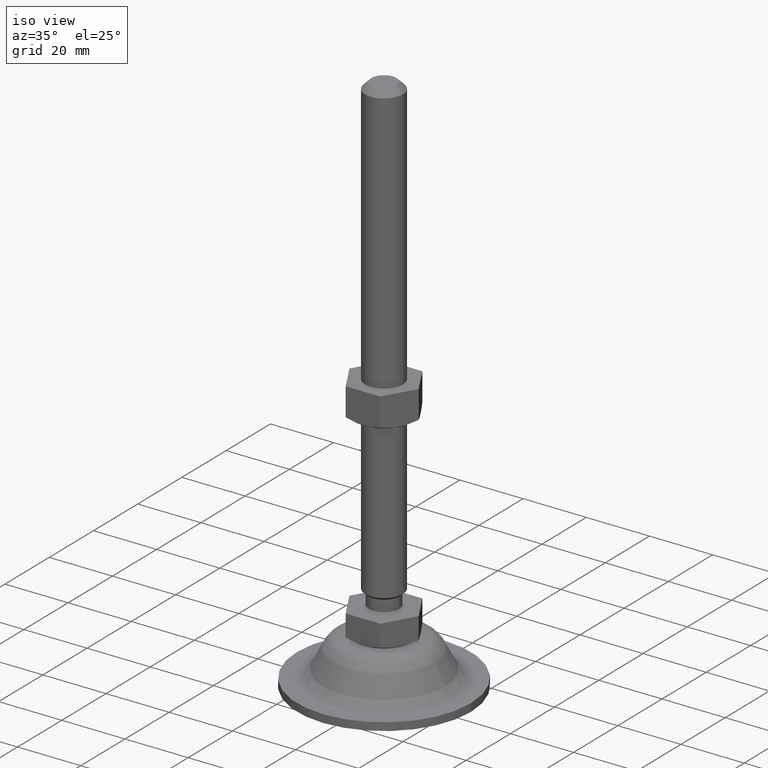
[diagram: clean part render]
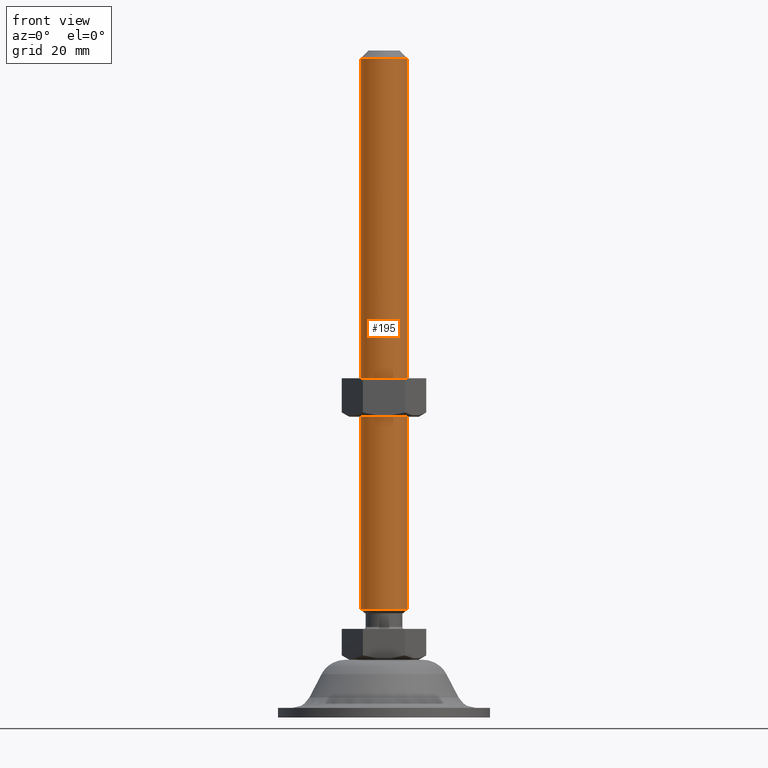
[diagram: tour spotlight — one face highlighted and labeled with its STEP entity id]
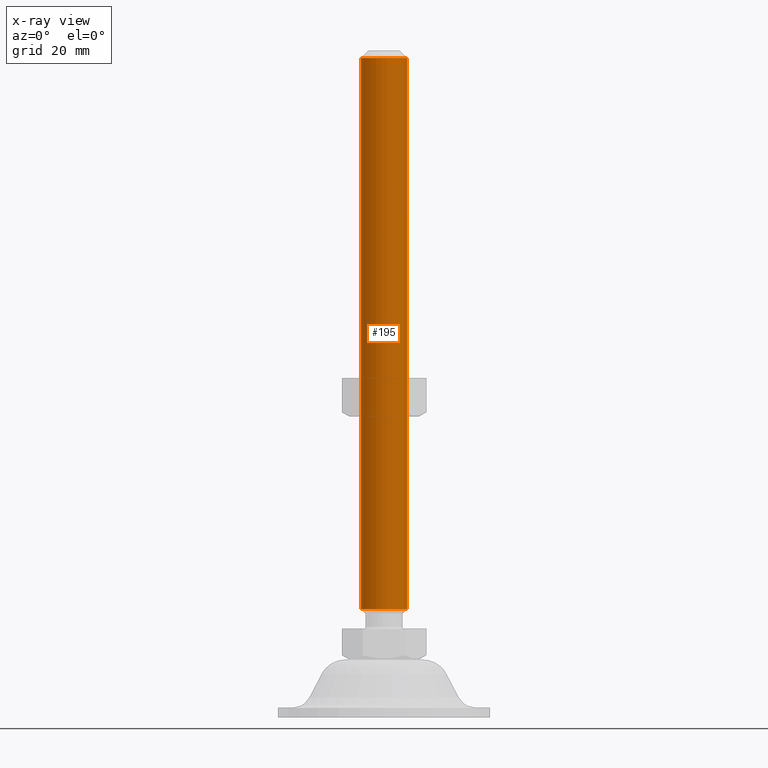
[diagram: x-ray of the same camera — body ghosted, this tour face saturated]
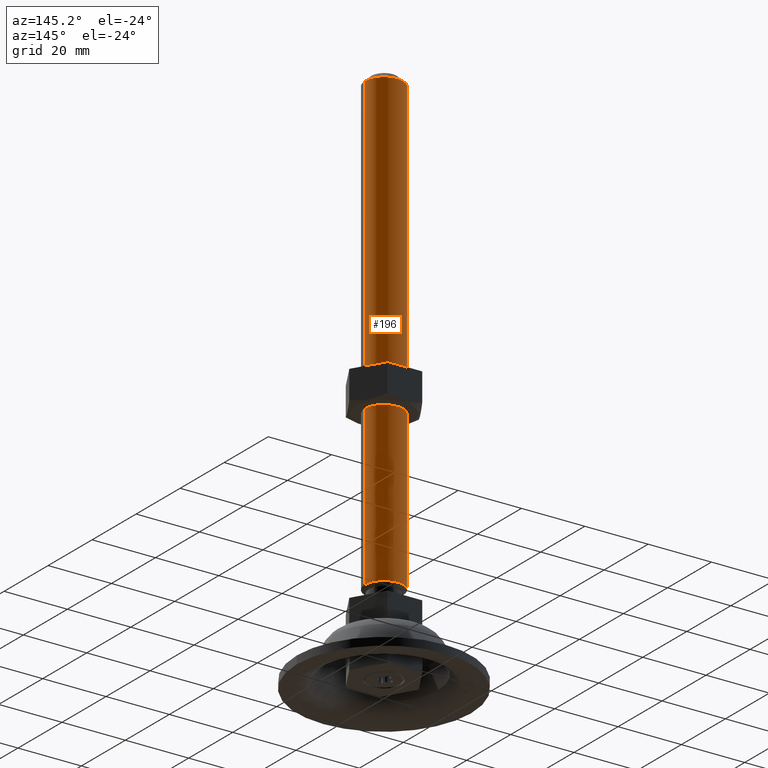
[diagram: tour spotlight — one face highlighted and labeled with its STEP entity id]
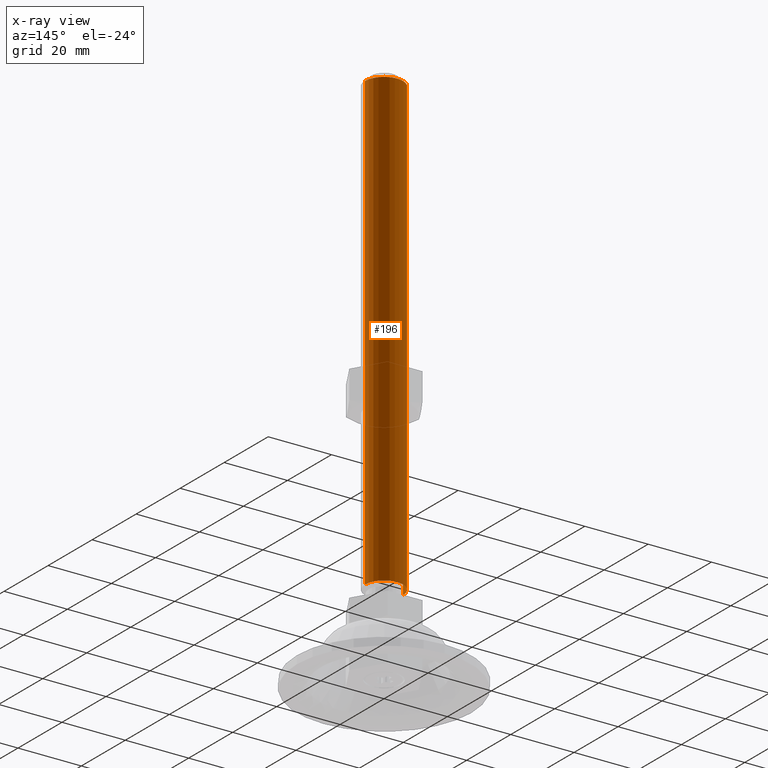
[diagram: x-ray of the same camera — body ghosted, this tour face saturated]
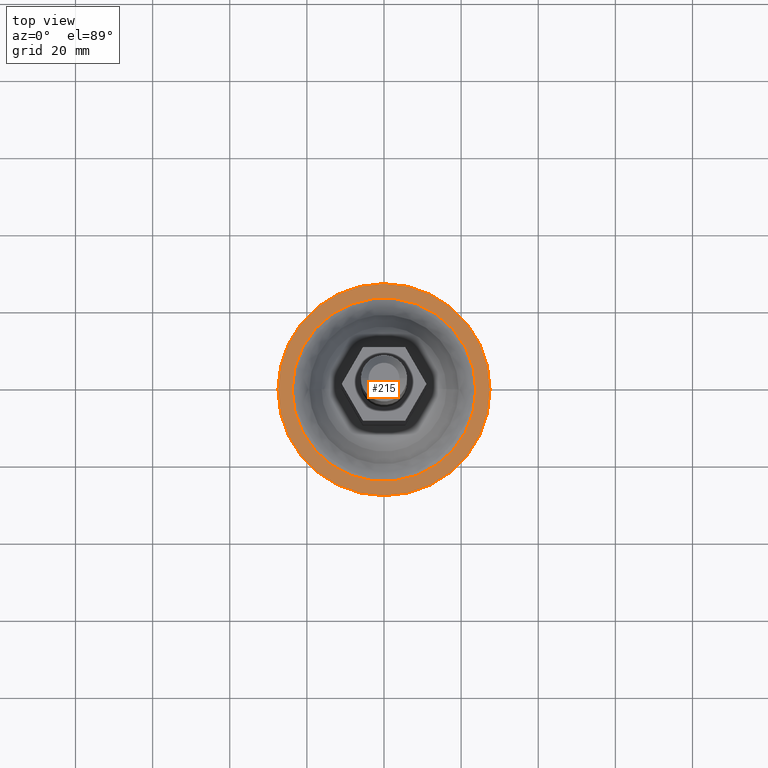
[diagram: tour spotlight — one face highlighted and labeled with its STEP entity id]
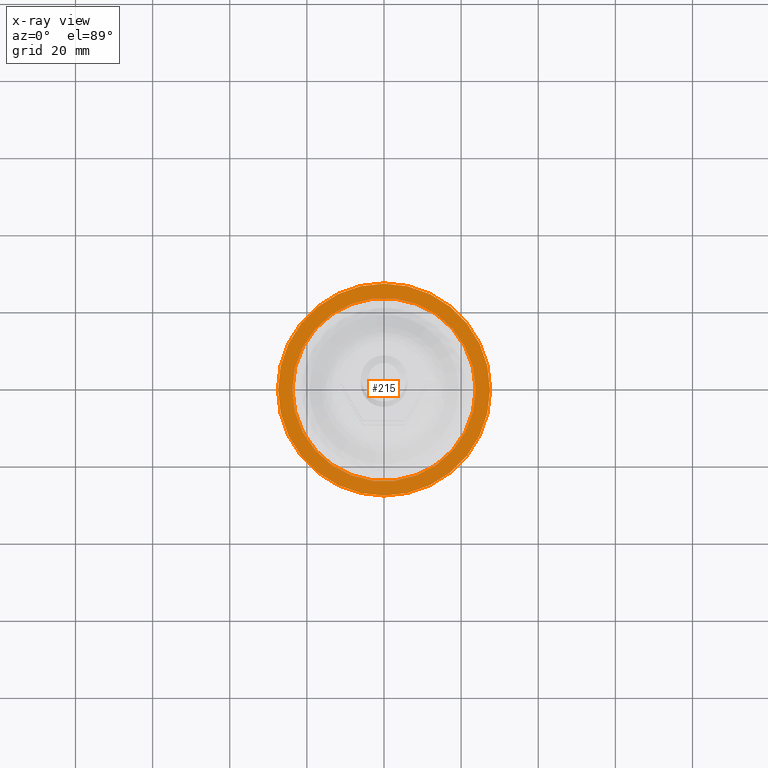
[diagram: x-ray of the same camera — body ghosted, this tour face saturated]
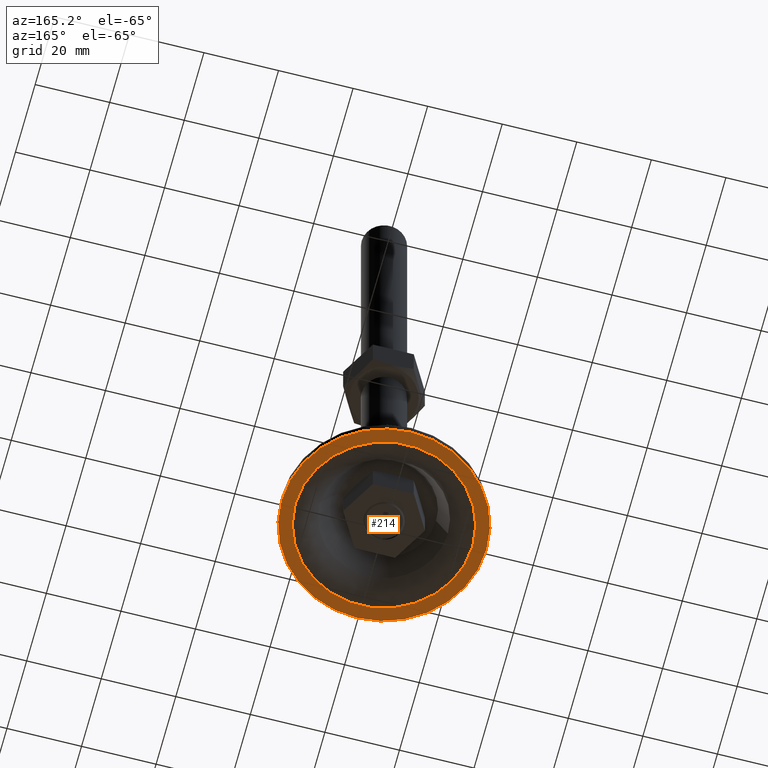
[diagram: tour spotlight — one face highlighted and labeled with its STEP entity id]
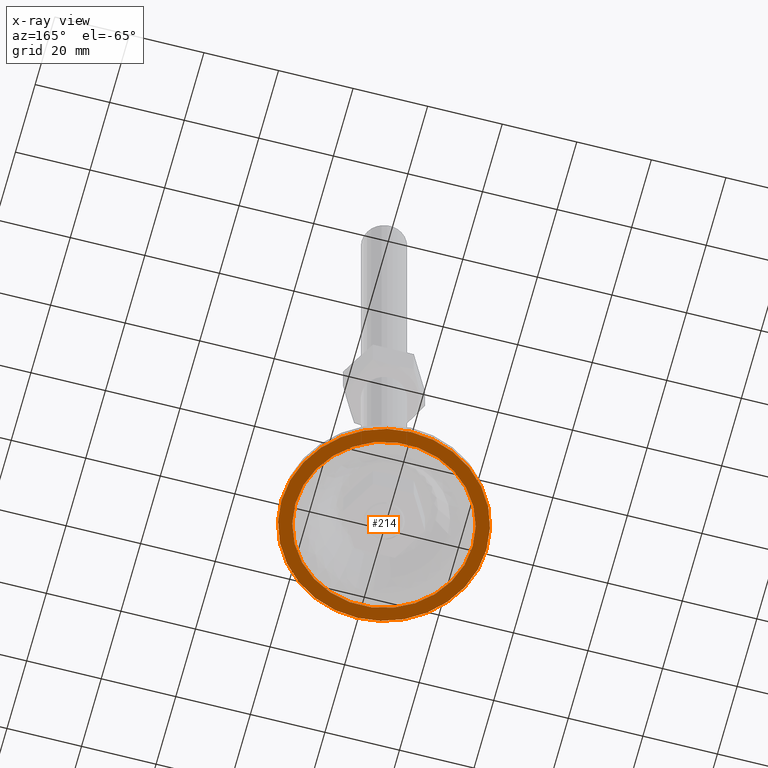
[diagram: x-ray of the same camera — body ghosted, this tour face saturated]
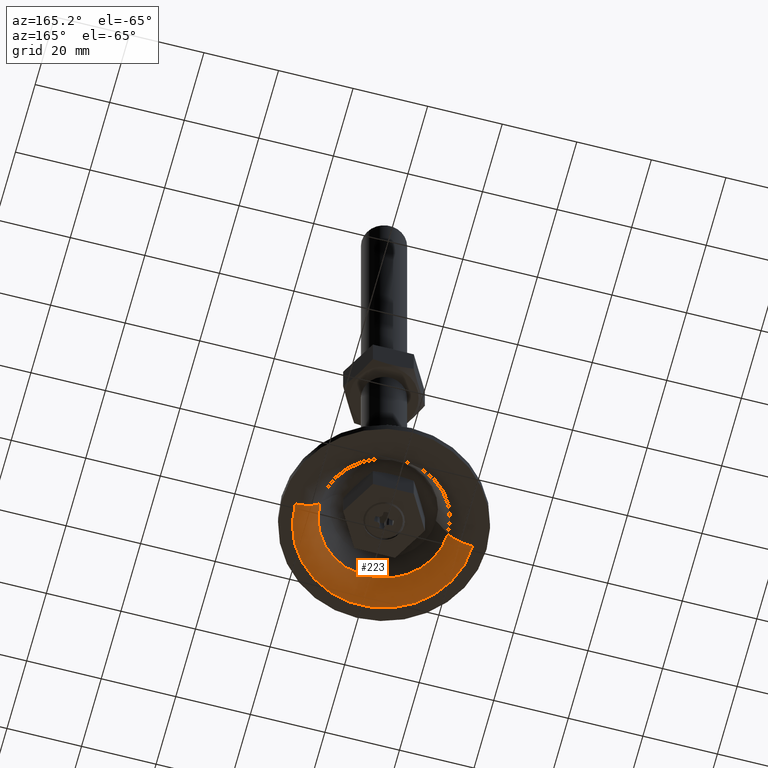
[diagram: tour spotlight — one face highlighted and labeled with its STEP entity id]
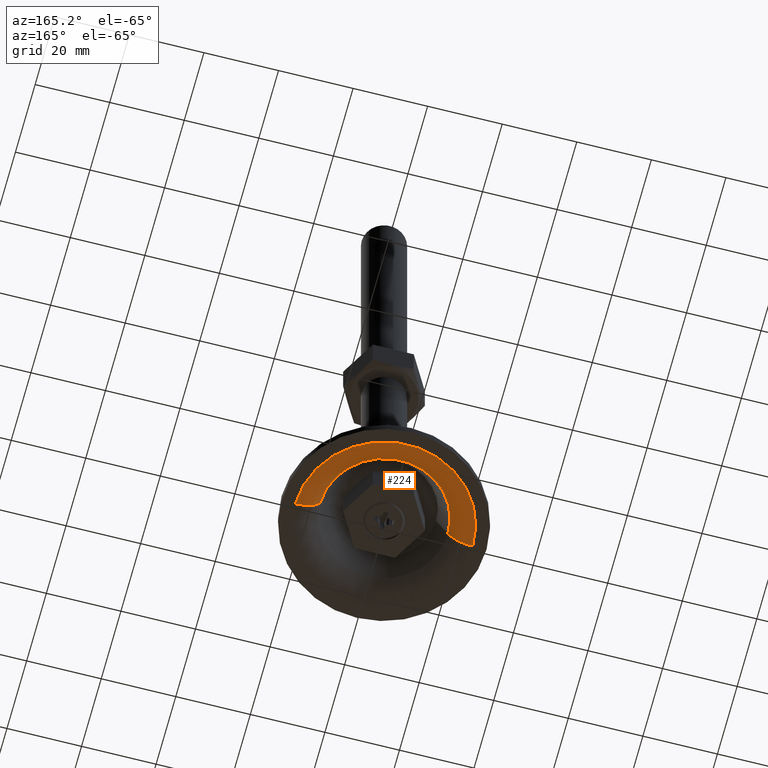
[diagram: tour spotlight — one face highlighted and labeled with its STEP entity id]
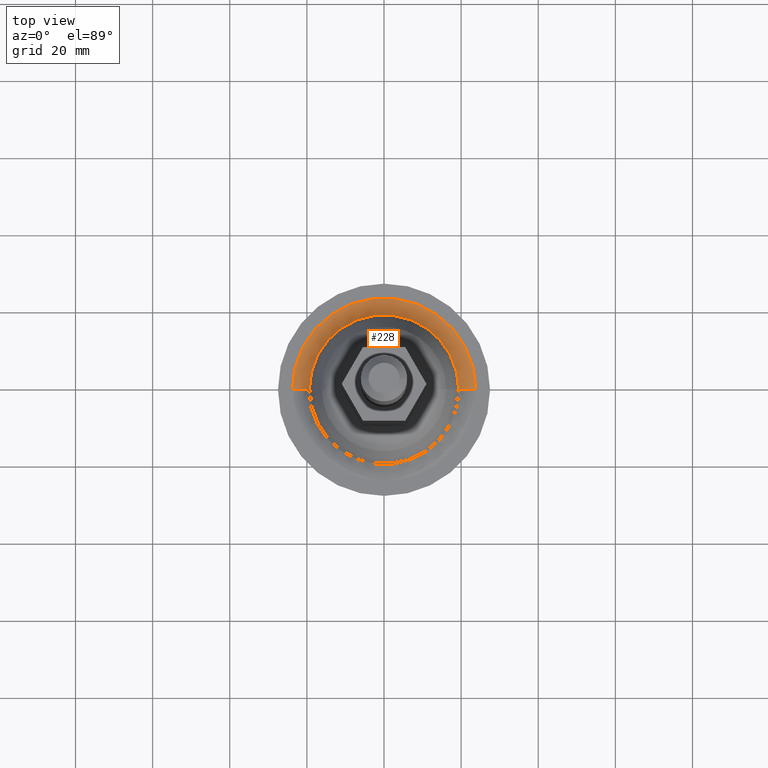
[diagram: tour spotlight — one face highlighted and labeled with its STEP entity id]
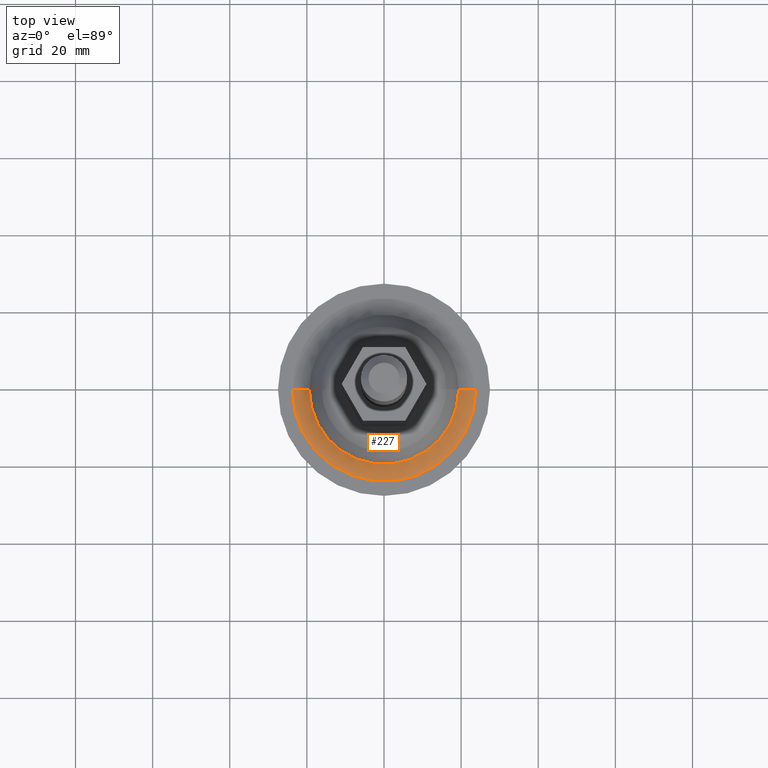
[diagram: tour spotlight — one face highlighted and labeled with its STEP entity id]
A machine part: a face-by-face anatomy tour. The part has 96 B-rep faces; the first image is the clean iso view, then the 8 largest visible faces are spotlighted one at a time (largest first), each with its STEP entity span.

Face 1 — front view, entity #195. An x-ray twin of the same camera follows (body ghosted, this face saturated) — the face is partly hidden behind the body. In plain terms, the highlighted cylindrical surface (edge-blend (fillet) strip) has radius 6 mm, axis along (0, 0, 1).
Definition (entity closure, byte-faithful):
#195=ADVANCED_FACE('',(#712),#711,.T.);
#711=CYLINDRICAL_SURFACE('',#1468,6.00000000009E+00);
#712=FACE_OUTER_BOUND('',#1469,.T.);
#1465=CARTESIAN_POINT('',(-2.70574673777E-11,0.00000000000E+00,0.00000000000E+00));
#1466=DIRECTION('',(0.00000000000E+00,-0.00000000000E+00,1.00000000000E+00));
#1467=DIRECTION('',(-1.00000000000E+00,1.22464679915E-16,0.00000000000E+00));
#1468=AXIS2_PLACEMENT_3D('',#1465,#1466,#1467);
#1469=EDGE_LOOP('',(#2297,#2298,#2299,#2300));
#2297=ORIENTED_EDGE('',*,*,#2637,.T.);
#2298=ORIENTED_EDGE('',*,*,#2638,.F.);
#2299=ORIENTED_EDGE('',*,*,#2639,.T.);
#2300=ORIENTED_EDGE('',*,*,#2640,.T.);
#2637=EDGE_CURVE('',#3587,#3588,#3589,.T.);
#2638=EDGE_CURVE('',#3595,#3588,#3596,.T.);
#2639=EDGE_CURVE('',#3595,#3602,#3603,.T.);
#2640=EDGE_CURVE('',#3602,#3587,#3609,.T.);
#3587=VERTEX_POINT('',#4797);
#3588=VERTEX_POINT('',#4798);
#3589=CIRCLE('',#4802,6.00000000009E+00);
#3595=VERTEX_POINT('',#4803);
#3596=(BOUNDED_CURVE() B_SPLINE_CURVE(1,(#4804,#4805),.UNSPECIFIED.,.F.,.F.) B_SPLINE_CURVE_WITH_KNOTS((2,2),(6.13696476442E-02,9.38630352235E-01),.UNSPECIFIED.) CURVE() GEOMETRIC_REPRESENTATION_ITEM() RATIONAL_B_SPLINE_CURVE((1.00000000000E+00,1.00000000000E+00)) REPRESENTATION_ITEM('') );
#3602=VERTEX_POINT('',#4806);
#3603=CIRCLE('',#4810,6.00000000009E+00);
#3609=(BOUNDED_CURVE() B_SPLINE_CURVE(1,(#4811,#4812),.UNSPECIFIED.,.F.,.F.) B_SPLINE_CURVE_WITH_KNOTS((2,2),(6.13696475984E-02,9.38630352402E-01),.UNSPECIFIED.) CURVE() GEOMETRIC_REPRESENTATION_ITEM() RATIONAL_B_SPLINE_CURVE((7.50000000000E-01,7.50000000000E-01)) REPRESENTATION_ITEM('') );
#4797=CARTESIAN_POINT('',(6.00000000006E+00,0.00000000000E+00,1.48000000366E+02));
#4798=CARTESIAN_POINT('',(-6.00000000012E+00,1.18423789293E-15,1.48000000366E+02));
#4799=CARTESIAN_POINT('',(-2.70574673777E-11,0.00000000000E+00,1.48000000366E+02));
#4800=DIRECTION('',(0.00000000000E+00,0.00000000000E+00,-1.00000000000E+00));
#4801=DIRECTION('',(1.00000000000E+00,-1.22460635382E-16,0.00000000000E+00));
#4802=AXIS2_PLACEMENT_3D('',#4799,#4800,#4801);
#4803=CARTESIAN_POINT('',(-6.00000000012E+00,-2.96059473233E-16,5.05299983155E+00));
#4804=CARTESIAN_POINT('',(-6.00000000012E+00,7.34788079499E-16,5.05299983901E+00));
#4805=CARTESIAN_POINT('',(-6.00000000012E+00,7.34788079499E-16,1.48000000338E+02));
#4806=CARTESIAN_POINT('',(6.00000000006E+00,0.00000000000E+00,5.05299983155E+00));
#4807=CARTESIAN_POINT('',(-2.70574673777E-11,0.00000000000E+00,5.05299983155E+00));
#4808=DIRECTION('',(0.00000000000E+00,0.00000000000E+00,1.00000000000E+00));
#4809=DIRECTION('',(1.00000000000E+00,-1.22460635382E-16,0.00000000000E+00));
#4810=AXIS2_PLACEMENT_3D('',#4807,#4808,#4809);
#4811=CARTESIAN_POINT('',(6.00000000006E+00,0.00000000000E+00,5.05299983155E+00));
#4812=CARTESIAN_POINT('',(6.00000000006E+00,0.00000000000E+00,1.48000000366E+02));

Face 2 — auxiliary view, entity #196. An x-ray twin of the same camera follows (body ghosted, this face saturated) — the face is partly hidden behind the body. In plain terms, the highlighted cylindrical surface (edge-blend (fillet) strip) has radius 6 mm, axis along (0, 0, 1).
Definition (entity closure, byte-faithful):
#196=ADVANCED_FACE('',(#722),#721,.T.);
#721=CYLINDRICAL_SURFACE('',#1473,6.00000000009E+00);
#722=FACE_OUTER_BOUND('',#1474,.T.);
#1470=CARTESIAN_POINT('',(-2.70574673777E-11,0.00000000000E+00,0.00000000000E+00));
#1471=DIRECTION('',(0.00000000000E+00,-0.00000000000E+00,1.00000000000E+00));
#1472=DIRECTION('',(-1.00000000000E+00,1.22464679915E-16,0.00000000000E+00));
#1473=AXIS2_PLACEMENT_3D('',#1470,#1471,#1472);
#1474=EDGE_LOOP('',(#2301,#2302,#2303,#2304));
#2301=ORIENTED_EDGE('',*,*,#2641,.T.);
#2302=ORIENTED_EDGE('',*,*,#2638,.T.);
#2303=ORIENTED_EDGE('',*,*,#2642,.T.);
#2304=ORIENTED_EDGE('',*,*,#2640,.F.);
#2638=EDGE_CURVE('',#3595,#3588,#3596,.T.);
#2640=EDGE_CURVE('',#3602,#3587,#3609,.T.);
#2641=EDGE_CURVE('',#3602,#3595,#3615,.T.);
#2642=EDGE_CURVE('',#3588,#3587,#3621,.T.);
#3587=VERTEX_POINT('',#4797);
#3588=VERTEX_POINT('',#4798);
#3595=VERTEX_POINT('',#4803);
#3596=(BOUNDED_CURVE() B_SPLINE_CURVE(1,(#4804,#4805),.UNSPECIFIED.,.F.,.F.) B_SPLINE_CURVE_WITH_KNOTS((2,2),(6.13696476442E-02,9.38630352235E-01),.UNSPECIFIED.) CURVE() GEOMETRIC_REPRESENTATION_ITEM() RATIONAL_B_SPLINE_CURVE((1.00000000000E+00,1.00000000000E+00)) REPRESENTATION_ITEM('') );
#3602=VERTEX_POINT('',#4806);
#3609=(BOUNDED_CURVE() B_SPLINE_CURVE(1,(#4811,#4812),.UNSPECIFIED.,.F.,.F.) B_SPLINE_CURVE_WITH_KNOTS((2,2),(6.13696475984E-02,9.38630352402E-01),.UNSPECIFIED.) CURVE() GEOMETRIC_REPRESENTATION_ITEM() RATIONAL_B_SPLINE_CURVE((7.50000000000E-01,7.50000000000E-01)) REPRESENTATION_ITEM('') );
#3615=CIRCLE('',#4816,6.00000000009E+00);
#3621=CIRCLE('',#4820,6.00000000009E+00);
#4797=CARTESIAN_POINT('',(6.00000000006E+00,0.00000000000E+00,1.48000000366E+02));
#4798=CARTESIAN_POINT('',(-6.00000000012E+00,1.18423789293E-15,1.48000000366E+02));
#4803=CARTESIAN_POINT('',(-6.00000000012E+00,-2.96059473233E-16,5.05299983155E+00));
#4804=CARTESIAN_POINT('',(-6.00000000012E+00,7.34788079499E-16,5.05299983901E+00));
#4805=CARTESIAN_POINT('',(-6.00000000012E+00,7.34788079499E-16,1.48000000338E+02));
#4806=CARTESIAN_POINT('',(6.00000000006E+00,0.00000000000E+00,5.05299983155E+00));
#4811=CARTESIAN_POINT('',(6.00000000006E+00,0.00000000000E+00,5.05299983155E+00));
#4812=CARTESIAN_POINT('',(6.00000000006E+00,0.00000000000E+00,1.48000000366E+02));
#4813=CARTESIAN_POINT('',(-2.70574673777E-11,0.00000000000E+00,5.05299983155E+00));
#4814=DIRECTION('',(0.00000000000E+00,0.00000000000E+00,1.00000000000E+00));
#4815=DIRECTION('',(1.00000000000E+00,-1.22460635382E-16,0.00000000000E+00));
#4816=AXIS2_PLACEMENT_3D('',#4813,#4814,#4815);
#4817=CARTESIAN_POINT('',(-2.70574673777E-11,0.00000000000E+00,1.48000000366E+02));
#4818=DIRECTION('',(0.00000000000E+00,0.00000000000E+00,-1.00000000000E+00));
#4819=DIRECTION('',(1.00000000000E+00,-1.22460635382E-16,0.00000000000E+00));
#4820=AXIS2_PLACEMENT_3D('',#4817,#4818,#4819);

Face 3 — top view, entity #215. An x-ray twin of the same camera follows (body ghosted, this face saturated) — the face is partly hidden behind the body. In plain terms, the highlighted planar face has unit normal (0, 0, 1).
Definition (entity closure, byte-faithful):
#215=ADVANCED_FACE('',(#914,#915),#913,.T.);
#913=PLANE('',#1714);
#914=FACE_OUTER_BOUND('',#1715,.T.);
#915=FACE_BOUND('',#1716,.T.);
#1711=CARTESIAN_POINT('',(-3.57500000001E+01,-5.71576766498E+01,-2.05000003431E+01));
#1712=DIRECTION('',(0.00000000000E+00,0.00000000000E+00,1.00000000000E+00));
#1713=DIRECTION('',(1.00000000000E+00,0.00000000000E+00,-0.00000000000E+00));
#1714=AXIS2_PLACEMENT_3D('',#1711,#1712,#1713);
#1715=EDGE_LOOP('',(#2381,#2382));
#1716=EDGE_LOOP('',(#2383,#2384));
#2381=ORIENTED_EDGE('',*,*,#2669,.F.);
#2382=ORIENTED_EDGE('',*,*,#2670,.F.);
#2383=ORIENTED_EDGE('',*,*,#2671,.T.);
#2384=ORIENTED_EDGE('',*,*,#2672,.T.);
#2669=EDGE_CURVE('',#3793,#3794,#3795,.T.);
#2670=EDGE_CURVE('',#3794,#3793,#3801,.T.);
#2671=EDGE_CURVE('',#3807,#3808,#3809,.T.);
#2672=EDGE_CURVE('',#3808,#3807,#3815,.T.);
#3793=VERTEX_POINT('',#4907);
#3794=VERTEX_POINT('',#4908);
#3795=CIRCLE('',#4912,2.75000000000E+01);
#3801=CIRCLE('',#4916,2.75000000000E+01);
#3807=VERTEX_POINT('',#4917);
#3808=VERTEX_POINT('',#4918);
#3809=CIRCLE('',#4922,2.37911627802E+01);
#3815=CIRCLE('',#4926,2.37911627802E+01);
#4907=CARTESIAN_POINT('',(2.75000000000E+01,0.00000000000E+00,-2.05000003431E+01));
#4908=CARTESIAN_POINT('',(-2.75000000001E+01,0.00000000000E+00,-2.05000003431E+01));
#4909=CARTESIAN_POINT('',(-2.70574673777E-11,0.00000000000E+00,-2.05000003431E+01));
#4910=DIRECTION('',(-0.00000000000E+00,0.00000000000E+00,-1.00000000000E+00));
#4911=DIRECTION('',(-1.00000000000E+00,-1.22460635382E-16,0.00000000000E+00));
#4912=AXIS2_PLACEMENT_3D('',#4909,#4910,#4911);
#4913=CARTESIAN_POINT('',(-2.70574673777E-11,0.00000000000E+00,-2.05000003431E+01));
#4914=DIRECTION('',(-0.00000000000E+00,0.00000000000E+00,-1.00000000000E+00));
#4915=DIRECTION('',(-1.00000000000E+00,-1.22460635382E-16,0.00000000000E+00));
#4916=AXIS2_PLACEMENT_3D('',#4913,#4914,#4915);
#4917=CARTESIAN_POINT('',(-2.37911627802E+01,0.00000000000E+00,-2.05000003431E+01));
#4918=CARTESIAN_POINT('',(2.37911627802E+01,-1.18423789293E-15,-2.05000003431E+01));
#4919=CARTESIAN_POINT('',(-2.70574673777E-11,0.00000000000E+00,-2.05000003431E+01));
#4920=DIRECTION('',(-0.00000000000E+00,0.00000000000E+00,-1.00000000000E+00));
#4921=DIRECTION('',(-1.00000000000E+00,-1.22460635382E-16,0.00000000000E+00));
#4922=AXIS2_PLACEMENT_3D('',#4919,#4920,#4921);
#4923=CARTESIAN_POINT('',(-2.70574673777E-11,0.00000000000E+00,-2.05000003431E+01));
#4924=DIRECTION('',(-0.00000000000E+00,0.00000000000E+00,-1.00000000000E+00));
#4925=DIRECTION('',(-1.00000000000E+00,-1.22460635382E-16,0.00000000000E+00));
#4926=AXIS2_PLACEMENT_3D('',#4923,#4924,#4925);

Face 4 — auxiliary view, entity #214. An x-ray twin of the same camera follows (body ghosted, this face saturated) — the face is partly hidden behind the body. In plain terms, the highlighted planar face has unit normal (0, 0, -1).
Definition (entity closure, byte-faithful):
#214=ADVANCED_FACE('',(#903,#904),#902,.T.);
#902=PLANE('',#1708);
#903=FACE_OUTER_BOUND('',#1709,.T.);
#904=FACE_BOUND('',#1710,.T.);
#1705=CARTESIAN_POINT('',(6.32500000000E+01,-5.71576766498E+01,-2.30000002000E+01));
#1706=DIRECTION('',(-0.00000000000E+00,0.00000000000E+00,-1.00000000000E+00));
#1707=DIRECTION('',(-1.00000000000E+00,0.00000000000E+00,0.00000000000E+00));
#1708=AXIS2_PLACEMENT_3D('',#1705,#1706,#1707);
#1709=EDGE_LOOP('',(#2377,#2378));
#1710=EDGE_LOOP('',(#2379,#2380));
#2377=ORIENTED_EDGE('',*,*,#2665,.T.);
#2378=ORIENTED_EDGE('',*,*,#2666,.T.);
#2379=ORIENTED_EDGE('',*,*,#2667,.F.);
#2380=ORIENTED_EDGE('',*,*,#2668,.F.);
#2665=EDGE_CURVE('',#3765,#3766,#3767,.T.);
#2666=EDGE_CURVE('',#3766,#3765,#3773,.T.);
#2667=EDGE_CURVE('',#3779,#3780,#3781,.T.);
#2668=EDGE_CURVE('',#3780,#3779,#3787,.T.);
#3765=VERTEX_POINT('',#4887);
#3766=VERTEX_POINT('',#4888);
#3767=CIRCLE('',#4892,2.75000000000E+01);
#3773=CIRCLE('',#4896,2.75000000000E+01);
#3779=VERTEX_POINT('',#4897);
#3780=VERTEX_POINT('',#4898);
#3781=CIRCLE('',#4902,2.37911627802E+01);
#3787=CIRCLE('',#4906,2.37911627802E+01);
#4887=CARTESIAN_POINT('',(-2.75000000001E+01,0.00000000000E+00,-2.30000002000E+01));
#4888=CARTESIAN_POINT('',(2.75000000000E+01,1.18423789293E-15,-2.30000002000E+01));
#4889=CARTESIAN_POINT('',(-2.70574673777E-11,0.00000000000E+00,-2.30000002000E+01));
#4890=DIRECTION('',(-0.00000000000E+00,0.00000000000E+00,-1.00000000000E+00));
#4891=DIRECTION('',(-1.00000000000E+00,-1.22460635382E-16,0.00000000000E+00));
#4892=AXIS2_PLACEMENT_3D('',#4889,#4890,#4891);
#4893=CARTESIAN_POINT('',(-2.70574673777E-11,0.00000000000E+00,-2.30000002000E+01));
#4894=DIRECTION('',(-0.00000000000E+00,0.00000000000E+00,-1.00000000000E+00));
#4895=DIRECTION('',(-1.00000000000E+00,-1.22460635382E-16,0.00000000000E+00));
#4896=AXIS2_PLACEMENT_3D('',#4893,#4894,#4895);
#4897=CARTESIAN_POINT('',(2.37911627802E+01,-1.18423789293E-15,-2.30000002000E+01));
#4898=CARTESIAN_POINT('',(-2.37911627802E+01,0.00000000000E+00,-2.30000002000E+01));
#4899=CARTESIAN_POINT('',(-2.70574673777E-11,0.00000000000E+00,-2.30000002000E+01));
#4900=DIRECTION('',(-0.00000000000E+00,0.00000000000E+00,-1.00000000000E+00));
#4901=DIRECTION('',(-1.00000000000E+00,-1.22460635382E-16,0.00000000000E+00));
#4902=AXIS2_PLACEMENT_3D('',#4899,#4900,#4901);
#4903=CARTESIAN_POINT('',(-2.70574673777E-11,0.00000000000E+00,-2.30000002000E+01));
#4904=DIRECTION('',(-0.00000000000E+00,0.00000000000E+00,-1.00000000000E+00));
#4905=DIRECTION('',(-1.00000000000E+00,-1.22460635382E-16,0.00000000000E+00));
#4906=AXIS2_PLACEMENT_3D('',#4903,#4904,#4905);

Face 5 — auxiliary view, entity #223. In plain terms, the highlighted face is a freeform B-spline surface patch.
Definition (entity closure, byte-faithful):
#223=ADVANCED_FACE('',(#996),#995,.T.);
#995=( BOUNDED_SURFACE() B_SPLINE_SURFACE( 2,2,((#1807,#1808,#1809,#1810,#1811),(#1812,#1813,#1814,#1815,#1816),(#1817,#1818,#1819,#1820,#1821),(#1822,#1823,#1824,#1825,#1826),(#1827,#1828,#1829,#1830,#1831)), .UNSPECIFIED.,.F.,.F.,.F.) B_SPLINE_SURFACE_WITH_KNOTS((3,2,3),(3,2,3),(0.00000000000E+00,5.00000000000E-01,1.00000000000E+00),(0.00000000000E+00,5.00000000000E-01,1.00000000000E+00), .UNSPECIFIED. ) GEOMETRIC_REPRESENTATION_ITEM() RATIONAL_B_SPLINE_SURFACE(((1.00000000000E+00,8.54911870673E-01,1.00000000000E+00,8.54911870673E-01,1.00000000000E+00),(7.07106781187E-01,6.04513981070E-01,7.07106781187E-01,6.04513981070E-01,7.07106781187E-01),(1.00000000000E+00,8.54911870673E-01,1.00000000000E+00,8.54911870673E-01,1.00000000000E+00),(7.07106781187E-01,6.04513981070E-01,7.07106781187E-01,6.04513981070E-01,7.07106781187E-01),(1.00000000000E+00,8.54911870673E-01,1.00000000000E+00,8.54911870673E-01,1.00000000000E+00))) REPRESENTATION_ITEM('') SURFACE() );
#996=FACE_OUTER_BOUND('',#1832,.T.);
#1807=CARTESIAN_POINT('',(3.04437440290E+01,-3.72816023721E-15,-1.89631147993E+01));
#1808=CARTESIAN_POINT('',(2.83422745026E+01,-3.47081294376E-15,-2.30000002000E+01));
#1809=CARTESIAN_POINT('',(2.37911627802E+01,-2.91348091055E-15,-2.30000002000E+01));
#1810=CARTESIAN_POINT('',(1.92400510578E+01,-2.35614887733E-15,-2.30000002000E+01));
#1811=CARTESIAN_POINT('',(1.71385815314E+01,-2.09880158388E-15,-1.89631147993E+01));
#1812=CARTESIAN_POINT('',(3.04437440290E+01,-3.04437440291E+01,-1.89631147993E+01));
#1813=CARTESIAN_POINT('',(2.83422745026E+01,-2.83422745026E+01,-2.30000002000E+01));
#1814=CARTESIAN_POINT('',(2.37911627802E+01,-2.37911627802E+01,-2.30000002000E+01));
#1815=CARTESIAN_POINT('',(1.92400510578E+01,-1.92400510579E+01,-2.30000002000E+01));
#1816=CARTESIAN_POINT('',(1.71385815314E+01,-1.71385815314E+01,-1.89631147993E+01));
#1817=CARTESIAN_POINT('',(-2.70600807968E-11,-3.04437440291E+01,-1.89631147993E+01));
#1818=CARTESIAN_POINT('',(-2.70599521274E-11,-2.83422745026E+01,-2.30000002000E+01));
#1819=CARTESIAN_POINT('',(-2.70596734706E-11,-2.37911627802E+01,-2.30000002000E+01));
#1820=CARTESIAN_POINT('',(-2.70593948138E-11,-1.92400510579E+01,-2.30000002000E+01));
#1821=CARTESIAN_POINT('',(-2.70592661444E-11,-1.71385815314E+01,-1.89631147993E+01));
#1822=CARTESIAN_POINT('',(-3.04437440291E+01,-3.04437440291E+01,-1.89631147993E+01));
#1823=CARTESIAN_POINT('',(-2.83422745026E+01,-2.83422745026E+01,-2.30000002000E+01));
#1824=CARTESIAN_POINT('',(-2.37911627802E+01,-2.37911627802E+01,-2.30000002000E+01));
#1825=CARTESIAN_POINT('',(-1.92400510579E+01,-1.92400510579E+01,-2.30000002000E+01));
#1826=CARTESIAN_POINT('',(-1.71385815314E+01,-1.71385815314E+01,-1.89631147993E+01));
#1827=CARTESIAN_POINT('',(-3.04437440291E+01,-1.23130712075E-19,-1.89631147993E+01));
#1828=CARTESIAN_POINT('',(-2.83422745026E+01,-1.14631250282E-19,-2.30000002000E+01));
#1829=CARTESIAN_POINT('',(-2.37911627802E+01,-9.62241310204E-20,-2.30000002000E+01));
#1830=CARTESIAN_POINT('',(-1.92400510579E+01,-7.78170117597E-20,-2.30000002000E+01));
#1831=CARTESIAN_POINT('',(-1.71385815314E+01,-6.93175499666E-20,-1.89631147993E+01));
#1832=EDGE_LOOP('',(#2413,#2414,#2415,#2416));
#2413=ORIENTED_EDGE('',*,*,#2684,.F.);
#2414=ORIENTED_EDGE('',*,*,#2687,.F.);
#2415=ORIENTED_EDGE('',*,*,#2667,.T.);
#2416=ORIENTED_EDGE('',*,*,#2688,.T.);
#2667=EDGE_CURVE('',#3779,#3780,#3781,.T.);
#2684=EDGE_CURVE('',#3887,#3894,#3895,.T.);
#2687=EDGE_CURVE('',#3779,#3887,#3913,.T.);
#2688=EDGE_CURVE('',#3780,#3894,#3919,.T.);
#3779=VERTEX_POINT('',#4897);
#3780=VERTEX_POINT('',#4898);
#3781=CIRCLE('',#4902,2.37911627802E+01);
#3887=VERTEX_POINT('',#4969);
#3894=VERTEX_POINT('',#4972);
#3895=CIRCLE('',#4976,1.71385815314E+01);
#3913=(BOUNDED_CURVE() B_SPLINE_CURVE(2,(#4983,#4984,#4985),.UNSPECIFIED.,.F.,.F.) B_SPLINE_CURVE_WITH_KNOTS((3,3),(5.00000000000E-01,1.00000000000E+00),.UNSPECIFIED.) CURVE() GEOMETRIC_REPRESENTATION_ITEM() RATIONAL_B_SPLINE_CURVE((1.00000000000E+00,8.54911870673E-01,1.00000000000E+00)) REPRESENTATION_ITEM('') );
#3919=(BOUNDED_CURVE() B_SPLINE_CURVE(2,(#4986,#4987,#4988),.UNSPECIFIED.,.F.,.F.) B_SPLINE_CURVE_WITH_KNOTS((3,3),(5.00000227287E-01,1.00000000000E+00),.UNSPECIFIED.) CURVE() GEOMETRIC_REPRESENTATION_ITEM() RATIONAL_B_SPLINE_CURVE((7.49999901070E-01,6.41183952470E-01,7.50000000000E-01)) REPRESENTATION_ITEM('') );
#4897=CARTESIAN_POINT('',(2.37911627802E+01,-1.18423789293E-15,-2.30000002000E+01));
#4898=CARTESIAN_POINT('',(-2.37911627802E+01,0.00000000000E+00,-2.30000002000E+01));
#4899=CARTESIAN_POINT('',(-2.70574673777E-11,0.00000000000E+00,-2.30000002000E+01));
#4900=DIRECTION('',(-0.00000000000E+00,0.00000000000E+00,-1.00000000000E+00));
#4901=DIRECTION('',(-1.00000000000E+00,-1.22460635382E-16,0.00000000000E+00));
#4902=AXIS2_PLACEMENT_3D('',#4899,#4900,#4901);
#4969=CARTESIAN_POINT('',(1.71385815314E+01,1.18423789293E-15,-1.89631147993E+01));
#4972=CARTESIAN_POINT('',(-1.71385815314E+01,0.00000000000E+00,-1.89631147993E+01));
#4973=CARTESIAN_POINT('',(-2.70574673777E-11,0.00000000000E+00,-1.89631147993E+01));
#4974=DIRECTION('',(-0.00000000000E+00,0.00000000000E+00,-1.00000000000E+00));
#4975=DIRECTION('',(-1.00000000000E+00,-1.22460635382E-16,0.00000000000E+00));
#4976=AXIS2_PLACEMENT_3D('',#4973,#4974,#4975);
#4983=CARTESIAN_POINT('',(2.37911627802E+01,-2.91348091055E-15,-2.30000002000E+01));
#4984=CARTESIAN_POINT('',(1.92400510578E+01,-2.35614887733E-15,-2.30000002000E+01));
#4985=CARTESIAN_POINT('',(1.71385815314E+01,-2.09880158388E-15,-1.89631147993E+01));
#4986=CARTESIAN_POINT('',(-2.37911592429E+01,3.55271360910E-15,-2.30000002000E+01));
#4987=CARTESIAN_POINT('',(-1.92400499405E+01,3.46304089890E-15,-2.29999980535E+01));
#4988=CARTESIAN_POINT('',(-1.71385815314E+01,3.55271367880E-15,-1.89631147993E+01));

Face 6 — auxiliary view, entity #224. In plain terms, the highlighted face is a freeform B-spline surface patch.
Definition (entity closure, byte-faithful):
#224=ADVANCED_FACE('',(#1006),#1005,.T.);
#1005=( BOUNDED_SURFACE() B_SPLINE_SURFACE( 2,2,((#1833,#1834,#1835,#1836,#1837),(#1838,#1839,#1840,#1841,#1842),(#1843,#1844,#1845,#1846,#1847),(#1848,#1849,#1850,#1851,#1852),(#1853,#1854,#1855,#1856,#1857)), .UNSPECIFIED.,.F.,.F.,.F.) B_SPLINE_SURFACE_WITH_KNOTS((3,2,3),(3,2,3),(0.00000000000E+00,5.00000000000E-01,1.00000000000E+00),(0.00000000000E+00,5.00000000000E-01,1.00000000000E+00), .UNSPECIFIED. ) GEOMETRIC_REPRESENTATION_ITEM() RATIONAL_B_SPLINE_SURFACE(((1.00000000000E+00,8.54911870673E-01,1.00000000000E+00,8.54911870673E-01,1.00000000000E+00),(7.07106781187E-01,6.04513981070E-01,7.07106781187E-01,6.04513981070E-01,7.07106781187E-01),(1.00000000000E+00,8.54911870673E-01,1.00000000000E+00,8.54911870673E-01,1.00000000000E+00),(7.07106781187E-01,6.04513981070E-01,7.07106781187E-01,6.04513981070E-01,7.07106781187E-01),(1.00000000000E+00,8.54911870673E-01,1.00000000000E+00,8.54911870673E-01,1.00000000000E+00))) REPRESENTATION_ITEM('') SURFACE() );
#1006=FACE_OUTER_BOUND('',#1858,.T.);
#1833=CARTESIAN_POINT('',(-3.04437440291E+01,-1.23130712074E-19,-1.89631147993E+01));
#1834=CARTESIAN_POINT('',(-2.83422745026E+01,-1.14631250281E-19,-2.30000002000E+01));
#1835=CARTESIAN_POINT('',(-2.37911627802E+01,-9.62241310202E-20,-2.30000002000E+01));
#1836=CARTESIAN_POINT('',(-1.92400510579E+01,-7.78170117589E-20,-2.30000002000E+01));
#1837=CARTESIAN_POINT('',(-1.71385815314E+01,-6.93175499664E-20,-1.89631147993E+01));
#1838=CARTESIAN_POINT('',(-3.04437440291E+01,3.04437440291E+01,-1.89631147993E+01));
#1839=CARTESIAN_POINT('',(-2.83422745026E+01,2.83422745026E+01,-2.30000002000E+01));
#1840=CARTESIAN_POINT('',(-2.37911627802E+01,2.37911627802E+01,-2.30000002000E+01));
#1841=CARTESIAN_POINT('',(-1.92400510579E+01,1.92400510579E+01,-2.30000002000E+01));
#1842=CARTESIAN_POINT('',(-1.71385815314E+01,1.71385815314E+01,-1.89631147993E+01));
#1843=CARTESIAN_POINT('',(-2.70600810431E-11,3.04437440291E+01,-1.89631147993E+01));
#1844=CARTESIAN_POINT('',(-2.70599523567E-11,2.83422745026E+01,-2.30000002000E+01));
#1845=CARTESIAN_POINT('',(-2.70596736631E-11,2.37911627802E+01,-2.30000002000E+01));
#1846=CARTESIAN_POINT('',(-2.70593949695E-11,1.92400510579E+01,-2.30000002000E+01));
#1847=CARTESIAN_POINT('',(-2.70592662831E-11,1.71385815314E+01,-1.89631147993E+01));
#1848=CARTESIAN_POINT('',(3.04437440290E+01,3.04437440291E+01,-1.89631147993E+01));
#1849=CARTESIAN_POINT('',(2.83422745026E+01,2.83422745026E+01,-2.30000002000E+01));
#1850=CARTESIAN_POINT('',(2.37911627802E+01,2.37911627802E+01,-2.30000002000E+01));
#1851=CARTESIAN_POINT('',(1.92400510578E+01,1.92400510579E+01,-2.30000002000E+01));
#1852=CARTESIAN_POINT('',(1.71385815314E+01,1.71385815314E+01,-1.89631147993E+01));
#1853=CARTESIAN_POINT('',(3.04437440290E+01,3.72840649864E-15,-1.89631147993E+01));
#1854=CARTESIAN_POINT('',(2.83422745026E+01,3.47104220626E-15,-2.30000002000E+01));
#1855=CARTESIAN_POINT('',(2.37911627802E+01,2.91367335881E-15,-2.30000002000E+01));
#1856=CARTESIAN_POINT('',(1.92400510578E+01,2.35630451136E-15,-2.30000002000E+01));
#1857=CARTESIAN_POINT('',(1.71385815314E+01,2.09894021898E-15,-1.89631147993E+01));
#1858=EDGE_LOOP('',(#2417,#2418,#2419,#2420));
#2417=ORIENTED_EDGE('',*,*,#2668,.T.);
#2418=ORIENTED_EDGE('',*,*,#2687,.T.);
#2419=ORIENTED_EDGE('',*,*,#2686,.F.);
#2420=ORIENTED_EDGE('',*,*,#2688,.F.);
#2668=EDGE_CURVE('',#3780,#3779,#3787,.T.);
#2686=EDGE_CURVE('',#3894,#3887,#3907,.T.);
#2687=EDGE_CURVE('',#3779,#3887,#3913,.T.);
#2688=EDGE_CURVE('',#3780,#3894,#3919,.T.);
#3779=VERTEX_POINT('',#4897);
#3780=VERTEX_POINT('',#4898);
#3787=CIRCLE('',#4906,2.37911627802E+01);
#3887=VERTEX_POINT('',#4969);
#3894=VERTEX_POINT('',#4972);
#3907=CIRCLE('',#4982,1.71385815314E+01);
#3913=(BOUNDED_CURVE() B_SPLINE_CURVE(2,(#4983,#4984,#4985),.UNSPECIFIED.,.F.,.F.) B_SPLINE_CURVE_WITH_KNOTS((3,3),(5.00000000000E-01,1.00000000000E+00),.UNSPECIFIED.) CURVE() GEOMETRIC_REPRESENTATION_ITEM() RATIONAL_B_SPLINE_CURVE((1.00000000000E+00,8.54911870673E-01,1.00000000000E+00)) REPRESENTATION_ITEM('') );
#3919=(BOUNDED_CURVE() B_SPLINE_CURVE(2,(#4986,#4987,#4988),.UNSPECIFIED.,.F.,.F.) B_SPLINE_CURVE_WITH_KNOTS((3,3),(5.00000227287E-01,1.00000000000E+00),.UNSPECIFIED.) CURVE() GEOMETRIC_REPRESENTATION_ITEM() RATIONAL_B_SPLINE_CURVE((7.49999901070E-01,6.41183952470E-01,7.50000000000E-01)) REPRESENTATION_ITEM('') );
#4897=CARTESIAN_POINT('',(2.37911627802E+01,-1.18423789293E-15,-2.30000002000E+01));
#4898=CARTESIAN_POINT('',(-2.37911627802E+01,0.00000000000E+00,-2.30000002000E+01));
#4903=CARTESIAN_POINT('',(-2.70574673777E-11,0.00000000000E+00,-2.30000002000E+01));
#4904=DIRECTION('',(-0.00000000000E+00,0.00000000000E+00,-1.00000000000E+00));
#4905=DIRECTION('',(-1.00000000000E+00,-1.22460635382E-16,0.00000000000E+00));
#4906=AXIS2_PLACEMENT_3D('',#4903,#4904,#4905);
#4969=CARTESIAN_POINT('',(1.71385815314E+01,1.18423789293E-15,-1.89631147993E+01));
#4972=CARTESIAN_POINT('',(-1.71385815314E+01,0.00000000000E+00,-1.89631147993E+01));
#4979=CARTESIAN_POINT('',(-2.70574673777E-11,0.00000000000E+00,-1.89631147993E+01));
#4980=DIRECTION('',(-0.00000000000E+00,0.00000000000E+00,-1.00000000000E+00));
#4981=DIRECTION('',(-1.00000000000E+00,-1.22460635382E-16,0.00000000000E+00));
#4982=AXIS2_PLACEMENT_3D('',#4979,#4980,#4981);
#4983=CARTESIAN_POINT('',(2.37911627802E+01,-2.91348091055E-15,-2.30000002000E+01));
#4984=CARTESIAN_POINT('',(1.92400510578E+01,-2.35614887733E-15,-2.30000002000E+01));
#4985=CARTESIAN_POINT('',(1.71385815314E+01,-2.09880158388E-15,-1.89631147993E+01));
#4986=CARTESIAN_POINT('',(-2.37911592429E+01,3.55271360910E-15,-2.30000002000E+01));
#4987=CARTESIAN_POINT('',(-1.92400499405E+01,3.46304089890E-15,-2.29999980535E+01));
#4988=CARTESIAN_POINT('',(-1.71385815314E+01,3.55271367880E-15,-1.89631147993E+01));

Face 7 — top view, entity #228. In plain terms, the highlighted face is a freeform B-spline surface patch.
Definition (entity closure, byte-faithful):
#228=ADVANCED_FACE('',(#1046),#1045,.F.);
#1045=( BOUNDED_SURFACE() B_SPLINE_SURFACE( 2,2,((#1895,#1896,#1897,#1898,#1899),(#1900,#1901,#1902,#1903,#1904),(#1905,#1906,#1907,#1908,#1909),(#1910,#1911,#1912,#1913,#1914),(#1915,#1916,#1917,#1918,#1919)), .UNSPECIFIED.,.F.,.F.,.F.) B_SPLINE_SURFACE_WITH_KNOTS((3,2,3),(3,2,3),(0.00000000000E+00,5.00000000000E-01,1.00000000000E+00),(0.00000000000E+00,5.00000000000E-01,1.00000000000E+00), .UNSPECIFIED. ) GEOMETRIC_REPRESENTATION_ITEM() RATIONAL_B_SPLINE_SURFACE(((1.00000000000E+00,8.54911870673E-01,1.00000000000E+00,8.54911870673E-01,1.00000000000E+00),(7.07106781187E-01,6.04513981070E-01,7.07106781187E-01,6.04513981070E-01,7.07106781187E-01),(1.00000000000E+00,8.54911870673E-01,1.00000000000E+00,8.54911870673E-01,1.00000000000E+00),(7.07106781187E-01,6.04513981070E-01,7.07106781187E-01,6.04513981070E-01,7.07106781187E-01),(1.00000000000E+00,8.54911870673E-01,1.00000000000E+00,8.54911870673E-01,1.00000000000E+00))) REPRESENTATION_ITEM('') SURFACE() );
#1046=FACE_OUTER_BOUND('',#1920,.T.);
#1895=CARTESIAN_POINT('',(-2.82262169461E+01,-1.14161851723E-19,-1.78087434093E+01));
#1896=CARTESIAN_POINT('',(-2.68252372618E+01,-1.08495543861E-19,-2.05000003431E+01));
#1897=CARTESIAN_POINT('',(-2.37911627802E+01,-9.62241310202E-20,-2.05000003431E+01));
#1898=CARTESIAN_POINT('',(-2.07570882987E+01,-8.39527181793E-20,-2.05000003431E+01));
#1899=CARTESIAN_POINT('',(-1.93561086144E+01,-7.82864103176E-20,-1.78087434093E+01));
#1900=CARTESIAN_POINT('',(-2.82262169461E+01,2.82262169461E+01,-1.78087434093E+01));
#1901=CARTESIAN_POINT('',(-2.68252372618E+01,2.68252372618E+01,-2.05000003431E+01));
#1902=CARTESIAN_POINT('',(-2.37911627802E+01,2.37911627802E+01,-2.05000003431E+01));
#1903=CARTESIAN_POINT('',(-2.07570882987E+01,2.07570882986E+01,-2.05000003431E+01));
#1904=CARTESIAN_POINT('',(-1.93561086144E+01,1.93561086143E+01,-1.78087434093E+01));
#1905=CARTESIAN_POINT('',(-2.70599452498E-11,2.82262169461E+01,-1.78087434093E+01));
#1906=CARTESIAN_POINT('',(-2.70598594588E-11,2.68252372618E+01,-2.05000003431E+01));
#1907=CARTESIAN_POINT('',(-2.70596736631E-11,2.37911627802E+01,-2.05000003431E+01));
#1908=CARTESIAN_POINT('',(-2.70594878673E-11,2.07570882986E+01,-2.05000003431E+01));
#1909=CARTESIAN_POINT('',(-2.70594020764E-11,1.93561086143E+01,-1.78087434093E+01));
#1910=CARTESIAN_POINT('',(2.82262169461E+01,2.82262169461E+01,-1.78087434093E+01));
#1911=CARTESIAN_POINT('',(2.68252372618E+01,2.68252372618E+01,-2.05000003431E+01));
#1912=CARTESIAN_POINT('',(2.37911627802E+01,2.37911627802E+01,-2.05000003431E+01));
#1913=CARTESIAN_POINT('',(2.07570882986E+01,2.07570882986E+01,-2.05000003431E+01));
#1914=CARTESIAN_POINT('',(1.93561086143E+01,1.93561086143E+01,-1.78087434093E+01));
#1915=CARTESIAN_POINT('',(2.82262169461E+01,3.45682878536E-15,-1.78087434093E+01));
#1916=CARTESIAN_POINT('',(2.68252372618E+01,3.28525259045E-15,-2.05000003431E+01));
#1917=CARTESIAN_POINT('',(2.37911627802E+01,2.91367335881E-15,-2.05000003431E+01));
#1918=CARTESIAN_POINT('',(2.07570882986E+01,2.54209412717E-15,-2.05000003431E+01));
#1919=CARTESIAN_POINT('',(1.93561086143E+01,2.37051793226E-15,-1.78087434093E+01));
#1920=EDGE_LOOP('',(#2433,#2434,#2435,#2436));
#2433=ORIENTED_EDGE('',*,*,#2694,.T.);
#2434=ORIENTED_EDGE('',*,*,#2691,.F.);
#2435=ORIENTED_EDGE('',*,*,#2671,.F.);
#2436=ORIENTED_EDGE('',*,*,#2693,.T.);
#2671=EDGE_CURVE('',#3807,#3808,#3809,.T.);
#2691=EDGE_CURVE('',#3808,#3937,#3938,.T.);
#2693=EDGE_CURVE('',#3807,#3944,#3951,.T.);
#2694=EDGE_CURVE('',#3944,#3937,#3957,.T.);
#3807=VERTEX_POINT('',#4917);
#3808=VERTEX_POINT('',#4918);
#3809=CIRCLE('',#4922,2.37911627802E+01);
#3937=VERTEX_POINT('',#4993);
#3938=(BOUNDED_CURVE() B_SPLINE_CURVE(2,(#4994,#4995,#4996),.UNSPECIFIED.,.F.,.F.) B_SPLINE_CURVE_WITH_KNOTS((3,3),(5.00000000000E-01,1.00000000000E+00),.UNSPECIFIED.) CURVE() GEOMETRIC_REPRESENTATION_ITEM() RATIONAL_B_SPLINE_CURVE((1.00000000000E+00,8.54911870673E-01,1.00000000000E+00)) REPRESENTATION_ITEM('') );
#3944=VERTEX_POINT('',#4997);
#3951=(BOUNDED_CURVE() B_SPLINE_CURVE(2,(#5002,#5003,#5004),.UNSPECIFIED.,.F.,.F.) B_SPLINE_CURVE_WITH_KNOTS((3,3),(5.00000338348E-01,1.00000000000E+00),.UNSPECIFIED.) CURVE() GEOMETRIC_REPRESENTATION_ITEM() RATIONAL_B_SPLINE_CURVE((7.49999852729E-01,6.41183976640E-01,7.50000000000E-01)) REPRESENTATION_ITEM('') );
#3957=CIRCLE('',#5008,1.93561086143E+01);
#4917=CARTESIAN_POINT('',(-2.37911627802E+01,0.00000000000E+00,-2.05000003431E+01));
#4918=CARTESIAN_POINT('',(2.37911627802E+01,-1.18423789293E-15,-2.05000003431E+01));
#4919=CARTESIAN_POINT('',(-2.70574673777E-11,0.00000000000E+00,-2.05000003431E+01));
#4920=DIRECTION('',(-0.00000000000E+00,0.00000000000E+00,-1.00000000000E+00));
#4921=DIRECTION('',(-1.00000000000E+00,-1.22460635382E-16,0.00000000000E+00));
#4922=AXIS2_PLACEMENT_3D('',#4919,#4920,#4921);
#4993=CARTESIAN_POINT('',(1.93561086143E+01,1.18423789293E-15,-1.78087434093E+01));
#4994=CARTESIAN_POINT('',(2.37911627802E+01,-2.91348091055E-15,-2.05000003431E+01));
#4995=CARTESIAN_POINT('',(2.07570882986E+01,-2.54192622174E-15,-2.05000003431E+01));
#4996=CARTESIAN_POINT('',(1.93561086143E+01,-2.37036135944E-15,-1.78087434093E+01));
#4997=CARTESIAN_POINT('',(-1.93561086144E+01,0.00000000000E+00,-1.78087434093E+01));
#5002=CARTESIAN_POINT('',(-2.37911592697E+01,3.55271437641E-15,-2.05000003431E+01));
#5003=CARTESIAN_POINT('',(-2.07570871897E+01,4.15564760685E-15,-2.04999982129E+01));
#5004=CARTESIAN_POINT('',(-1.93561086144E+01,2.36847578587E-15,-1.78087434093E+01));
#5005=CARTESIAN_POINT('',(-2.70574673777E-11,0.00000000000E+00,-1.78087434093E+01));
#5006=DIRECTION('',(-0.00000000000E+00,0.00000000000E+00,-1.00000000000E+00));
#5007=DIRECTION('',(-1.00000000000E+00,-1.22460635382E-16,0.00000000000E+00));
#5008=AXIS2_PLACEMENT_3D('',#5005,#5006,#5007);

Face 8 — top view, entity #227. In plain terms, the highlighted face is a freeform B-spline surface patch.
Definition (entity closure, byte-faithful):
#227=ADVANCED_FACE('',(#1036),#1035,.F.);
#1035=( BOUNDED_SURFACE() B_SPLINE_SURFACE( 2,2,((#1869,#1870,#1871,#1872,#1873),(#1874,#1875,#1876,#1877,#1878),(#1879,#1880,#1881,#1882,#1883),(#1884,#1885,#1886,#1887,#1888),(#1889,#1890,#1891,#1892,#1893)), .UNSPECIFIED.,.F.,.F.,.F.) B_SPLINE_SURFACE_WITH_KNOTS((3,2,3),(3,2,3),(0.00000000000E+00,5.00000000000E-01,1.00000000000E+00),(0.00000000000E+00,5.00000000000E-01,1.00000000000E+00), .UNSPECIFIED. ) GEOMETRIC_REPRESENTATION_ITEM() RATIONAL_B_SPLINE_SURFACE(((1.00000000000E+00,8.54911870673E-01,1.00000000000E+00,8.54911870673E-01,1.00000000000E+00),(7.07106781187E-01,6.04513981070E-01,7.07106781187E-01,6.04513981070E-01,7.07106781187E-01),(1.00000000000E+00,8.54911870673E-01,1.00000000000E+00,8.54911870673E-01,1.00000000000E+00),(7.07106781187E-01,6.04513981070E-01,7.07106781187E-01,6.04513981070E-01,7.07106781187E-01),(1.00000000000E+00,8.54911870673E-01,1.00000000000E+00,8.54911870673E-01,1.00000000000E+00))) REPRESENTATION_ITEM('') SURFACE() );
#1036=FACE_OUTER_BOUND('',#1894,.T.);
#1869=CARTESIAN_POINT('',(2.82262169461E+01,-3.45660046166E-15,-1.78087434093E+01));
#1870=CARTESIAN_POINT('',(2.68252372618E+01,-3.28503559936E-15,-2.05000003431E+01));
#1871=CARTESIAN_POINT('',(2.37911627802E+01,-2.91348091055E-15,-2.05000003431E+01));
#1872=CARTESIAN_POINT('',(2.07570882986E+01,-2.54192622174E-15,-2.05000003431E+01));
#1873=CARTESIAN_POINT('',(1.93561086143E+01,-2.37036135944E-15,-1.78087434093E+01));
#1874=CARTESIAN_POINT('',(2.82262169461E+01,-2.82262169461E+01,-1.78087434093E+01));
#1875=CARTESIAN_POINT('',(2.68252372618E+01,-2.68252372618E+01,-2.05000003431E+01));
#1876=CARTESIAN_POINT('',(2.37911627802E+01,-2.37911627802E+01,-2.05000003431E+01));
#1877=CARTESIAN_POINT('',(2.07570882986E+01,-2.07570882986E+01,-2.05000003431E+01));
#1878=CARTESIAN_POINT('',(1.93561086143E+01,-1.93561086143E+01,-1.78087434093E+01));
#1879=CARTESIAN_POINT('',(-2.70599450214E-11,-2.82262169461E+01,-1.78087434093E+01));
#1880=CARTESIAN_POINT('',(-2.70598592418E-11,-2.68252372618E+01,-2.05000003431E+01));
#1881=CARTESIAN_POINT('',(-2.70596734706E-11,-2.37911627802E+01,-2.05000003431E+01));
#1882=CARTESIAN_POINT('',(-2.70594876994E-11,-2.07570882986E+01,-2.05000003431E+01));
#1883=CARTESIAN_POINT('',(-2.70594019198E-11,-1.93561086143E+01,-1.78087434093E+01));
#1884=CARTESIAN_POINT('',(-2.82262169461E+01,-2.82262169461E+01,-1.78087434093E+01));
#1885=CARTESIAN_POINT('',(-2.68252372618E+01,-2.68252372618E+01,-2.05000003431E+01));
#1886=CARTESIAN_POINT('',(-2.37911627802E+01,-2.37911627802E+01,-2.05000003431E+01));
#1887=CARTESIAN_POINT('',(-2.07570882987E+01,-2.07570882986E+01,-2.05000003431E+01));
#1888=CARTESIAN_POINT('',(-1.93561086144E+01,-1.93561086143E+01,-1.78087434093E+01));
#1889=CARTESIAN_POINT('',(-2.82262169461E+01,-1.14161851722E-19,-1.78087434093E+01));
#1890=CARTESIAN_POINT('',(-2.68252372618E+01,-1.08495543861E-19,-2.05000003431E+01));
#1891=CARTESIAN_POINT('',(-2.37911627802E+01,-9.62241310197E-20,-2.05000003431E+01));
#1892=CARTESIAN_POINT('',(-2.07570882987E+01,-8.39527181789E-20,-2.05000003431E+01));
#1893=CARTESIAN_POINT('',(-1.93561086144E+01,-7.82864103177E-20,-1.78087434093E+01));
#1894=EDGE_LOOP('',(#2429,#2430,#2431,#2432));
#2429=ORIENTED_EDGE('',*,*,#2672,.F.);
#2430=ORIENTED_EDGE('',*,*,#2691,.T.);
#2431=ORIENTED_EDGE('',*,*,#2692,.T.);
#2432=ORIENTED_EDGE('',*,*,#2693,.F.);
#2672=EDGE_CURVE('',#3808,#3807,#3815,.T.);
#2691=EDGE_CURVE('',#3808,#3937,#3938,.T.);
#2692=EDGE_CURVE('',#3937,#3944,#3945,.T.);
#2693=EDGE_CURVE('',#3807,#3944,#3951,.T.);
#3807=VERTEX_POINT('',#4917);
#3808=VERTEX_POINT('',#4918);
#3815=CIRCLE('',#4926,2.37911627802E+01);
#3937=VERTEX_POINT('',#4993);
#3938=(BOUNDED_CURVE() B_SPLINE_CURVE(2,(#4994,#4995,#4996),.UNSPECIFIED.,.F.,.F.) B_SPLINE_CURVE_WITH_KNOTS((3,3),(5.00000000000E-01,1.00000000000E+00),.UNSPECIFIED.) CURVE() GEOMETRIC_REPRESENTATION_ITEM() RATIONAL_B_SPLINE_CURVE((1.00000000000E+00,8.54911870673E-01,1.00000000000E+00)) REPRESENTATION_ITEM('') );
#3944=VERTEX_POINT('',#4997);
#3945=CIRCLE('',#5001,1.93561086143E+01);
#3951=(BOUNDED_CURVE() B_SPLINE_CURVE(2,(#5002,#5003,#5004),.UNSPECIFIED.,.F.,.F.) B_SPLINE_CURVE_WITH_KNOTS((3,3),(5.00000338348E-01,1.00000000000E+00),.UNSPECIFIED.) CURVE() GEOMETRIC_REPRESENTATION_ITEM() RATIONAL_B_SPLINE_CURVE((7.49999852729E-01,6.41183976640E-01,7.50000000000E-01)) REPRESENTATION_ITEM('') );
#4917=CARTESIAN_POINT('',(-2.37911627802E+01,0.00000000000E+00,-2.05000003431E+01));
#4918=CARTESIAN_POINT('',(2.37911627802E+01,-1.18423789293E-15,-2.05000003431E+01));
#4923=CARTESIAN_POINT('',(-2.70574673777E-11,0.00000000000E+00,-2.05000003431E+01));
#4924=DIRECTION('',(-0.00000000000E+00,0.00000000000E+00,-1.00000000000E+00));
#4925=DIRECTION('',(-1.00000000000E+00,-1.22460635382E-16,0.00000000000E+00));
#4926=AXIS2_PLACEMENT_3D('',#4923,#4924,#4925);
#4993=CARTESIAN_POINT('',(1.93561086143E+01,1.18423789293E-15,-1.78087434093E+01));
#4994=CARTESIAN_POINT('',(2.37911627802E+01,-2.91348091055E-15,-2.05000003431E+01));
#4995=CARTESIAN_POINT('',(2.07570882986E+01,-2.54192622174E-15,-2.05000003431E+01));
#4996=CARTESIAN_POINT('',(1.93561086143E+01,-2.37036135944E-15,-1.78087434093E+01));
#4997=CARTESIAN_POINT('',(-1.93561086144E+01,0.00000000000E+00,-1.78087434093E+01));
#4998=CARTESIAN_POINT('',(-2.70574673777E-11,0.00000000000E+00,-1.78087434093E+01));
#4999=DIRECTION('',(-0.00000000000E+00,0.00000000000E+00,-1.00000000000E+00));
#5000=DIRECTION('',(-1.00000000000E+00,-1.22460635382E-16,0.00000000000E+00));
#5001=AXIS2_PLACEMENT_3D('',#4998,#4999,#5000);
#5002=CARTESIAN_POINT('',(-2.37911592697E+01,3.55271437641E-15,-2.05000003431E+01));
#5003=CARTESIAN_POINT('',(-2.07570871897E+01,4.15564760685E-15,-2.04999982129E+01));
#5004=CARTESIAN_POINT('',(-1.93561086144E+01,2.36847578587E-15,-1.78087434093E+01));